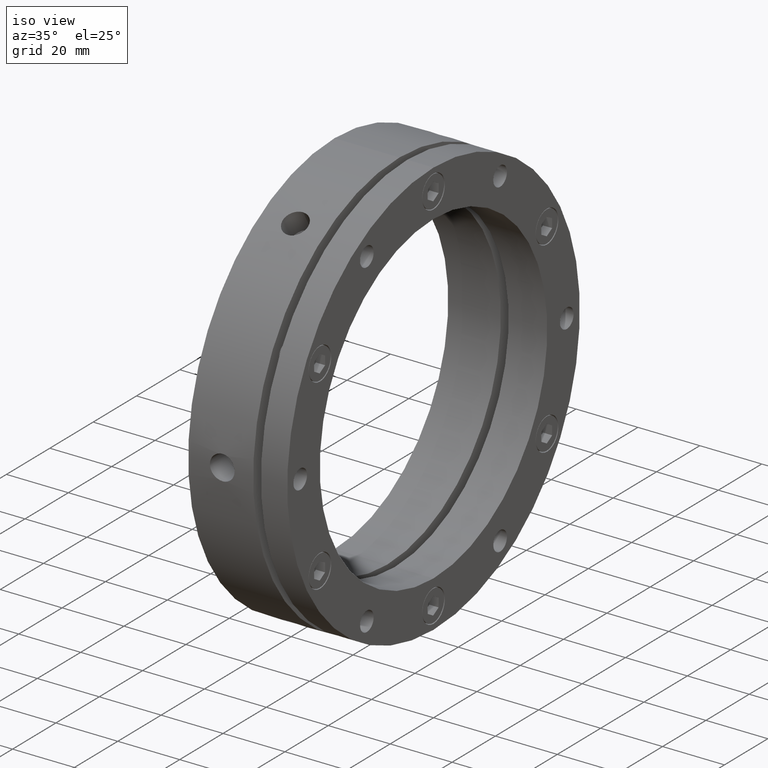
[diagram: clean part render]
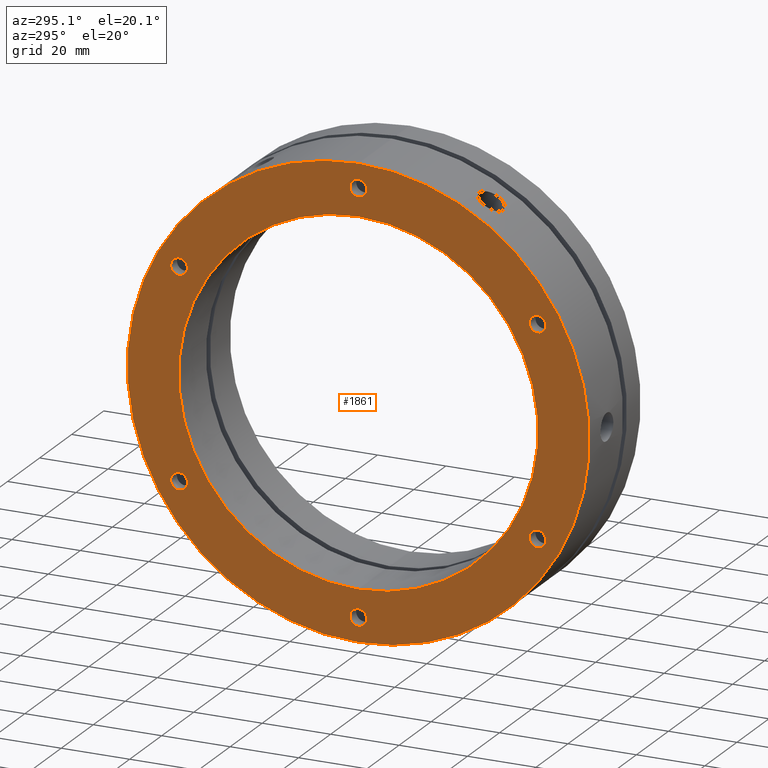
[diagram: tour spotlight — one face highlighted and labeled with its STEP entity id]
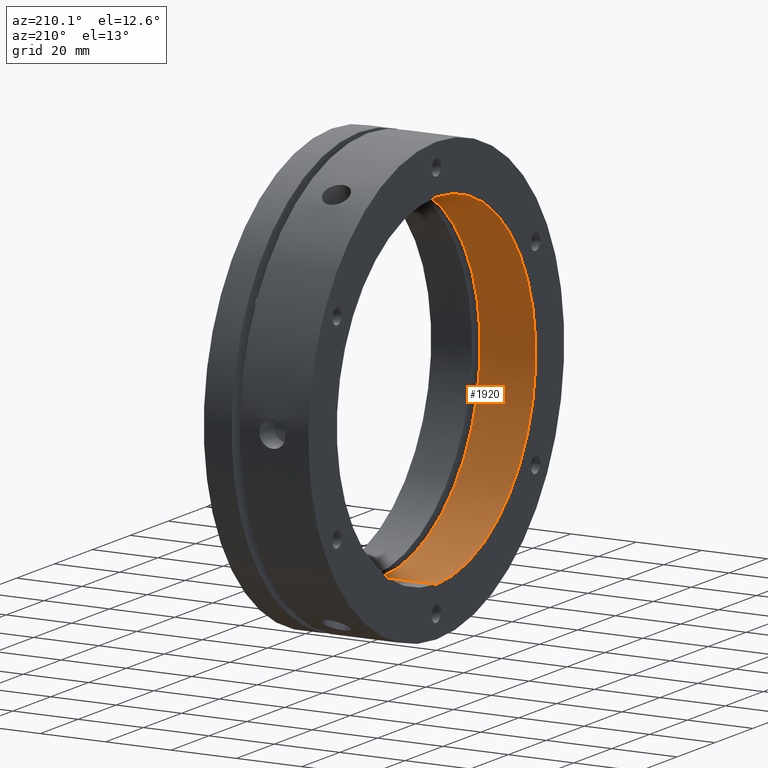
[diagram: tour spotlight — one face highlighted and labeled with its STEP entity id]
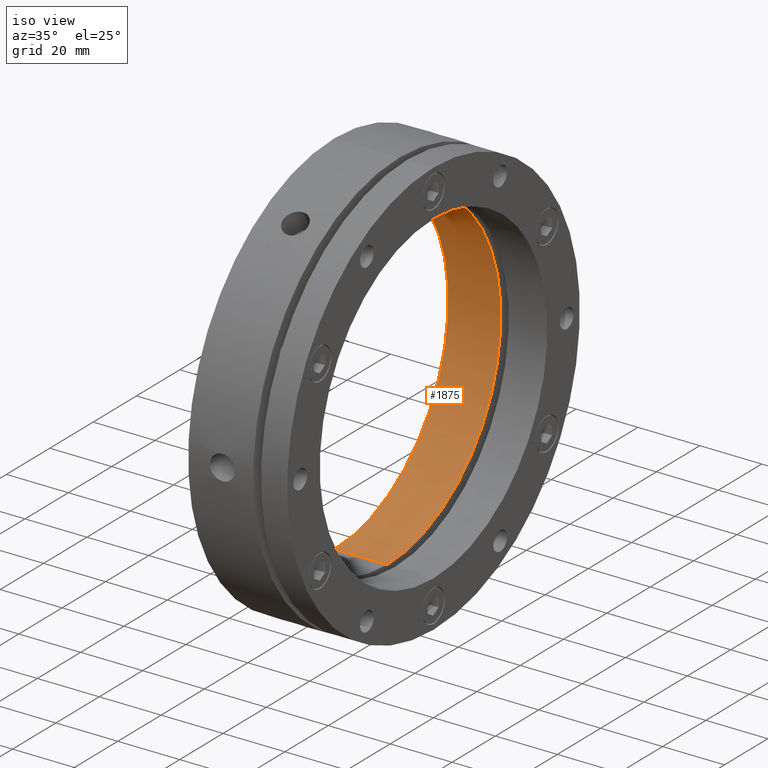
[diagram: tour spotlight — one face highlighted and labeled with its STEP entity id]
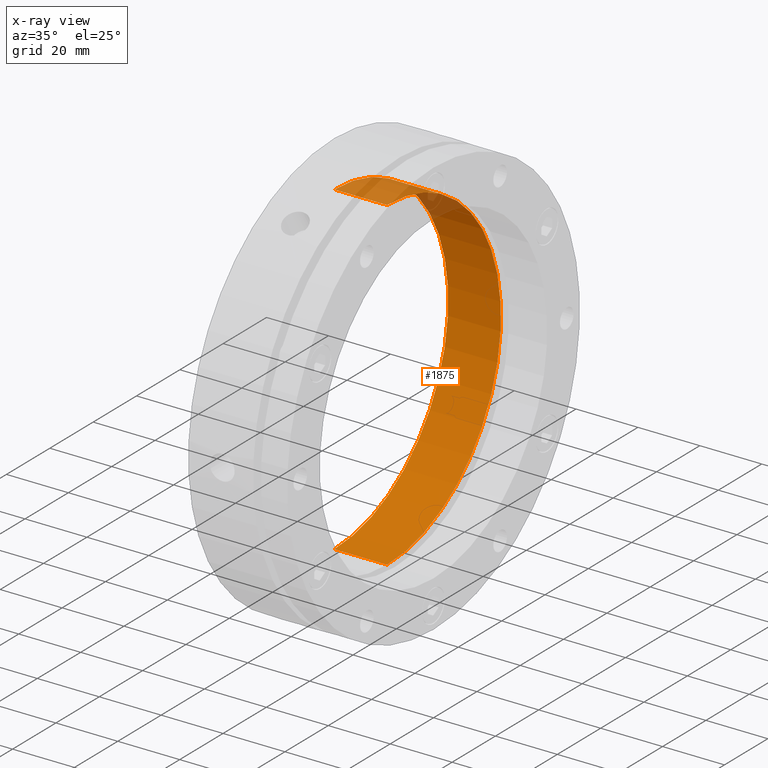
[diagram: x-ray of the same camera — body ghosted, this tour face saturated]
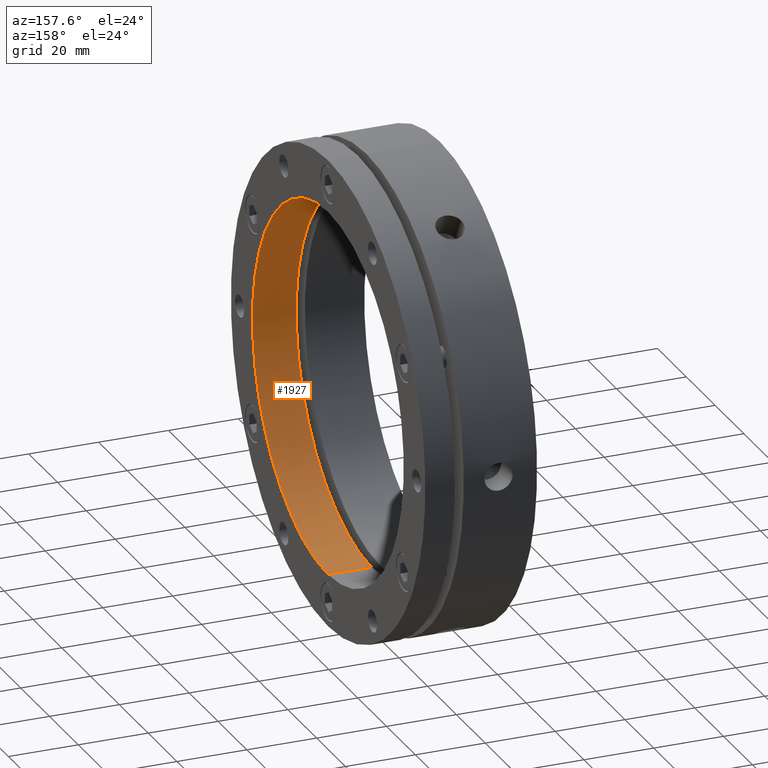
[diagram: tour spotlight — one face highlighted and labeled with its STEP entity id]
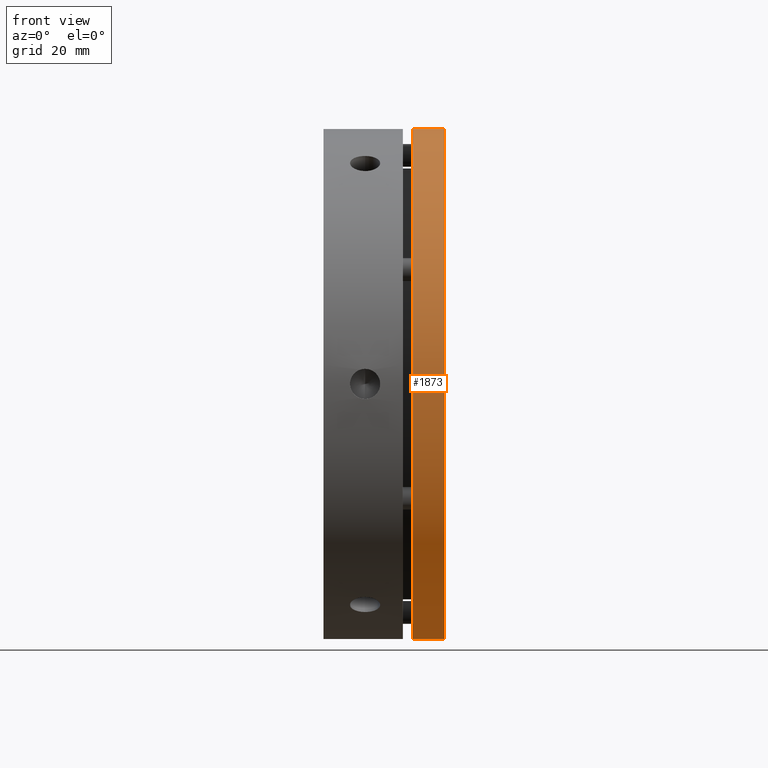
[diagram: tour spotlight — one face highlighted and labeled with its STEP entity id]
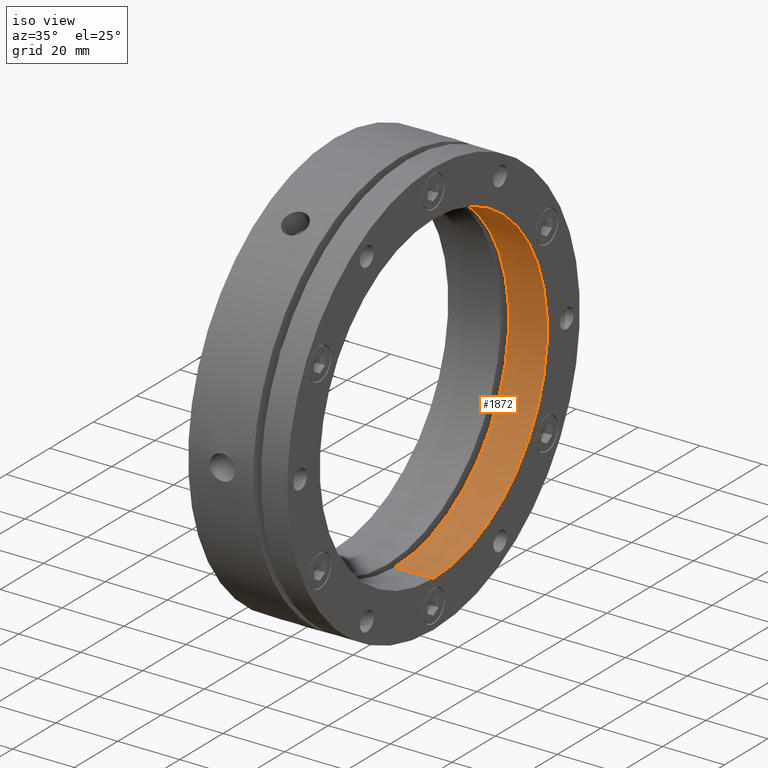
[diagram: tour spotlight — one face highlighted and labeled with its STEP entity id]
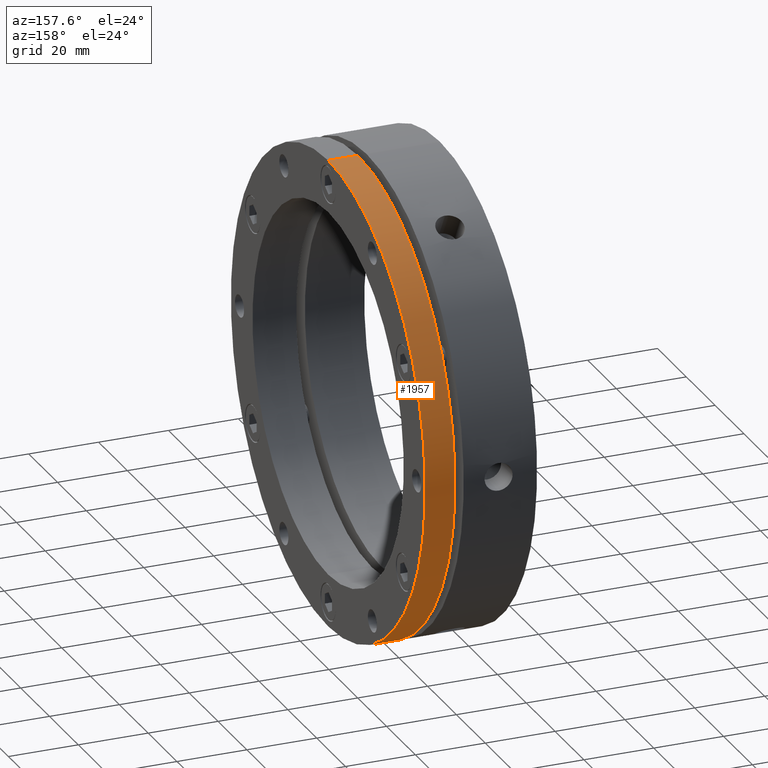
[diagram: tour spotlight — one face highlighted and labeled with its STEP entity id]
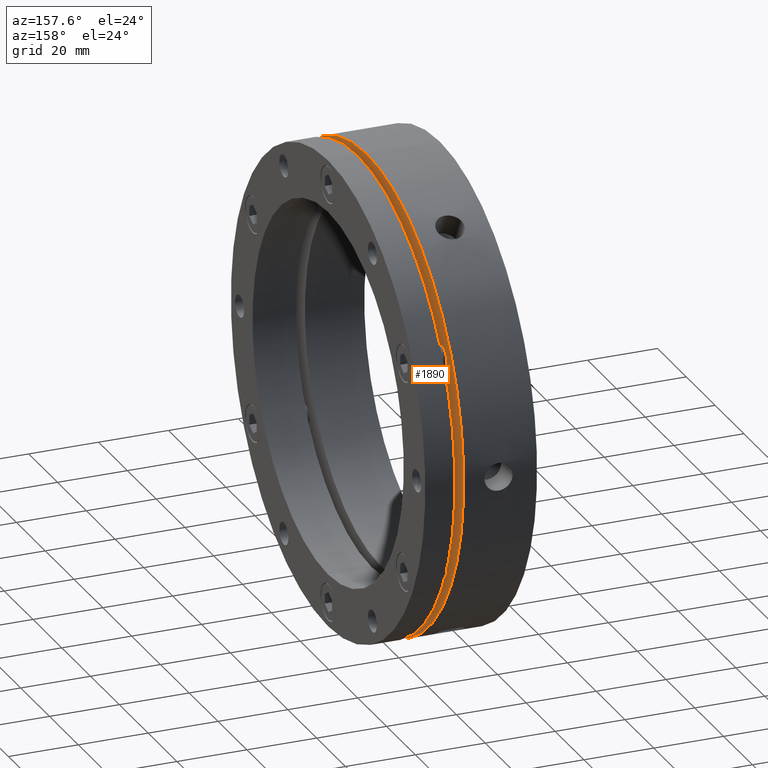
[diagram: tour spotlight — one face highlighted and labeled with its STEP entity id]
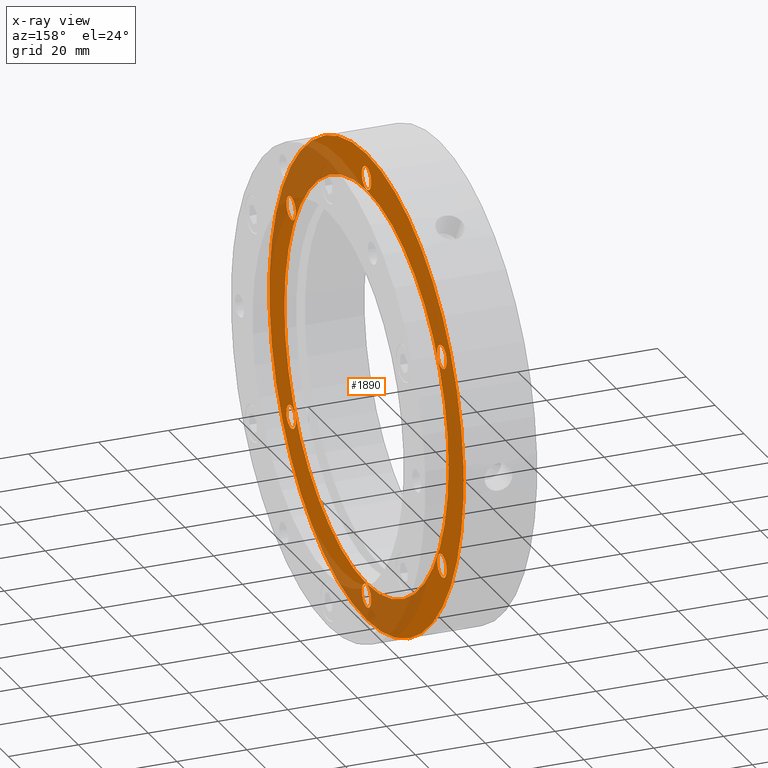
[diagram: x-ray of the same camera — body ghosted, this tour face saturated]
A machine part: a face-by-face anatomy tour. The part has 204 B-rep faces; the first image is the clean iso view, then the 8 largest visible faces are spotlighted one at a time (largest first), each with its STEP entity span.

Face 1 — auxiliary view, entity #1861. In plain terms, the highlighted planar face has unit normal (-1, 0, 0).
Definition (entity closure, byte-faithful):
#417 = CIRCLE ( 'NONE', #524, 2.458499999999999000 ) ;
#433 = CIRCLE ( 'NONE', #528, 2.458499999999995500 ) ;
#438 = CIRCLE ( 'NONE', #529, 67.50000000000000000 ) ;
#439 = CIRCLE ( 'NONE', #532, 2.458499999999999000 ) ;
#455 = CIRCLE ( 'NONE', #535, 52.50000000000000000 ) ;
#512 = AXIS2_PLACEMENT_3D ( 'NONE', #3790, #3791, #3792 ) ;
#514 = AXIS2_PLACEMENT_3D ( 'NONE', #3781, #3782, #3783 ) ;
#515 = AXIS2_PLACEMENT_3D ( 'NONE', #3777, #3778, #3779 ) ;
#524 = AXIS2_PLACEMENT_3D ( 'NONE', #3704, #3705, #3706 ) ;
#528 = AXIS2_PLACEMENT_3D ( 'NONE', #3680, #3681, #3682 ) ;
#529 = AXIS2_PLACEMENT_3D ( 'NONE', #3640, #3641, #3642 ) ;
#532 = AXIS2_PLACEMENT_3D ( 'NONE', #3493, #3494, #3495 ) ;
#535 = AXIS2_PLACEMENT_3D ( 'NONE', #3339, #3340, #3341 ) ;
#620 = EDGE_CURVE ( 'NONE', #2073, #2074, #1198, .T. ) ;
#639 = EDGE_CURVE ( 'NONE', #2081, #2082, #1171, .T. ) ;
#783 = AXIS2_PLACEMENT_3D ( 'NONE', #2841, #2838, #2845 ) ;
#1004 = EDGE_CURVE ( 'NONE', #2085, #2086, #4499, .T. ) ;
#1007 = EDGE_CURVE ( 'NONE', #2118, #2095, #4497, .T. ) ;
#1018 = EDGE_CURVE ( 'NONE', #2114, #2122, #4484, .T. ) ;
#1023 = EDGE_CURVE ( 'NONE', #2077, #2078, #4483, .T. ) ;
#1026 = EDGE_CURVE ( 'NONE', #2089, #2090, #4478, .T. ) ;
#1027 = EDGE_CURVE ( 'NONE', #2069, #2070, #4476, .T. ) ;
#1037 = ORIENTED_EDGE ( 'NONE', *, *, #4539, .T. ) ;
#1044 = ORIENTED_EDGE ( 'NONE', *, *, #4535, .T. ) ;
#1065 = ORIENTED_EDGE ( 'NONE', *, *, #4275, .T. ) ;
#1066 = ORIENTED_EDGE ( 'NONE', *, *, #4287, .T. ) ;
#1067 = ORIENTED_EDGE ( 'NONE', *, *, #1023, .T. ) ;
#1069 = ORIENTED_EDGE ( 'NONE', *, *, #4264, .T. ) ;
#1071 = ORIENTED_EDGE ( 'NONE', *, *, #1026, .T. ) ;
#1073 = ORIENTED_EDGE ( 'NONE', *, *, #1007, .T. ) ;
#1094 = ORIENTED_EDGE ( 'NONE', *, *, #4534, .T. ) ;
#1106 = ORIENTED_EDGE ( 'NONE', *, *, #620, .T. ) ;
#1123 = ORIENTED_EDGE ( 'NONE', *, *, #1018, .F. ) ;
#1126 = ORIENTED_EDGE ( 'NONE', *, *, #1027, .T. ) ;
#1134 = ORIENTED_EDGE ( 'NONE', *, *, #1004, .T. ) ;
#1145 = ORIENTED_EDGE ( 'NONE', *, *, #4297, .T. ) ;
#1171 = CIRCLE ( 'NONE', #2749, 2.458499999999999000 ) ;
#1194 = ORIENTED_EDGE ( 'NONE', *, *, #4283, .F. ) ;
#1198 = CIRCLE ( 'NONE', #4316, 2.458499999999999000 ) ;
#1255 = ORIENTED_EDGE ( 'NONE', *, *, #639, .T. ) ;
#1448 = CARTESIAN_POINT ( 'NONE',  ( -1.734723475976807100E-014, 52.39453692895854400, -30.25000000000004300 ) ) ;
#1449 = DIRECTION ( 'NONE',  ( 1.000000000000000000, -0.0000000000000000000, -0.0000000000000000000 ) ) ;
#1450 = DIRECTION ( 'NONE',  ( 0.0000000000000000000, 0.0000000000000000000, 1.000000000000000000 ) ) ;
#1497 = CARTESIAN_POINT ( 'NONE',  ( -1.734723475976807100E-014, -52.39453692895857300, -30.25000000000000000 ) ) ;
#1498 = DIRECTION ( 'NONE',  ( 1.000000000000000000, -0.0000000000000000000, -0.0000000000000000000 ) ) ;
#1499 = DIRECTION ( 'NONE',  ( 0.0000000000000000000, 0.0000000000000000000, 1.000000000000000000 ) ) ;
#1653 = CARTESIAN_POINT ( 'NONE',  ( -1.734723475976807100E-014, -52.39453692895855900, 30.25000000000002500 ) ) ;
#1654 = DIRECTION ( 'NONE',  ( 1.000000000000000000, -0.0000000000000000000, -0.0000000000000000000 ) ) ;
#1655 = DIRECTION ( 'NONE',  ( 0.0000000000000000000, 0.0000000000000000000, 1.000000000000000000 ) ) ;
#1662 = CARTESIAN_POINT ( 'NONE',  ( -1.387778780781445700E-014, 0.0000000000000000000, 0.0000000000000000000 ) ) ;
#1663 = DIRECTION ( 'NONE',  ( 1.000000000000000000, 0.0000000000000000000, 0.0000000000000000000 ) ) ;
#1664 = DIRECTION ( 'NONE',  ( 0.0000000000000000000, 0.0000000000000000000, -1.000000000000000000 ) ) ;
#1694 = CARTESIAN_POINT ( 'NONE',  ( -1.734723475976807100E-014, 0.0000000000000000000, 0.0000000000000000000 ) ) ;
#1695 = DIRECTION ( 'NONE',  ( 1.000000000000000000, 0.0000000000000000000, 0.0000000000000000000 ) ) ;
#1696 = DIRECTION ( 'NONE',  ( 0.0000000000000000000, 0.0000000000000000000, -1.000000000000000000 ) ) ;
#1742 = CARTESIAN_POINT ( 'NONE',  ( -1.734723475976807100E-014, -8.881783999999999800E-015, -60.50000000000004300 ) ) ;
#1743 = DIRECTION ( 'NONE',  ( 1.000000000000000000, -0.0000000000000000000, -0.0000000000000000000 ) ) ;
#1744 = DIRECTION ( 'NONE',  ( 0.0000000000000000000, 0.0000000000000000000, 1.000000000000000000 ) ) ;
#1751 = CARTESIAN_POINT ( 'NONE',  ( -1.734723475976807100E-014, 0.0000000000000000000, 60.50000000000003600 ) ) ;
#1752 = DIRECTION ( 'NONE',  ( 1.000000000000000000, -0.0000000000000000000, -0.0000000000000000000 ) ) ;
#1753 = DIRECTION ( 'NONE',  ( 0.0000000000000000000, 0.0000000000000000000, 1.000000000000000000 ) ) ;
#1754 = CARTESIAN_POINT ( 'NONE',  ( -1.734723475976807100E-014, 52.39453692895858700, 30.24999999999997900 ) ) ;
#1755 = DIRECTION ( 'NONE',  ( 1.000000000000000000, -0.0000000000000000000, -0.0000000000000000000 ) ) ;
#1756 = DIRECTION ( 'NONE',  ( 0.0000000000000000000, 0.0000000000000000000, 1.000000000000000000 ) ) ;
#1861 = ADVANCED_FACE ( 'NONE', ( #4390, #4382, #4386, #4383, #4388, #4381, #4380, #4379 ), #2843, .T. ) ;
#2069 = VERTEX_POINT ( 'NONE', #3239 ) ;
#2070 = VERTEX_POINT ( 'NONE', #3240 ) ;
#2073 = VERTEX_POINT ( 'NONE', #3243 ) ;
#2074 = VERTEX_POINT ( 'NONE', #3244 ) ;
#2077 = VERTEX_POINT ( 'NONE', #3247 ) ;
#2078 = VERTEX_POINT ( 'NONE', #3248 ) ;
#2081 = VERTEX_POINT ( 'NONE', #3251 ) ;
#2082 = VERTEX_POINT ( 'NONE', #3252 ) ;
#2085 = VERTEX_POINT ( 'NONE', #3255 ) ;
#2086 = VERTEX_POINT ( 'NONE', #3256 ) ;
#2089 = VERTEX_POINT ( 'NONE', #3259 ) ;
#2090 = VERTEX_POINT ( 'NONE', #3260 ) ;
#2095 = VERTEX_POINT ( 'NONE', #3265 ) ;
#2114 = VERTEX_POINT ( 'NONE', #3284 ) ;
#2118 = VERTEX_POINT ( 'NONE', #3288 ) ;
#2122 = VERTEX_POINT ( 'NONE', #3292 ) ;
#2147 = EDGE_LOOP ( 'NONE', ( #1194, #1123 ) ) ;
#2148 = EDGE_LOOP ( 'NONE', ( #1094, #1126 ) ) ;
#2149 = EDGE_LOOP ( 'NONE', ( #1037, #1106 ) ) ;
#2150 = EDGE_LOOP ( 'NONE', ( #1073, #1069 ) ) ;
#2153 = EDGE_LOOP ( 'NONE', ( #1145, #1134 ) ) ;
#2154 = EDGE_LOOP ( 'NONE', ( #1065, #1255 ) ) ;
#2155 = EDGE_LOOP ( 'NONE', ( #1044, #1067 ) ) ;
#2156 = EDGE_LOOP ( 'NONE', ( #1066, #1071 ) ) ;
#2251 = CIRCLE ( 'NONE', #512, 2.458499999999999000 ) ;
#2253 = CIRCLE ( 'NONE', #514, 2.458500000000002600 ) ;
#2283 = CIRCLE ( 'NONE', #515, 2.458500000000002600 ) ;
#2702 = AXIS2_PLACEMENT_3D ( 'NONE', #1754, #1755, #1756 ) ;
#2703 = AXIS2_PLACEMENT_3D ( 'NONE', #1751, #1752, #1753 ) ;
#2706 = AXIS2_PLACEMENT_3D ( 'NONE', #1742, #1743, #1744 ) ;
#2710 = AXIS2_PLACEMENT_3D ( 'NONE', #1694, #1695, #1696 ) ;
#2720 = AXIS2_PLACEMENT_3D ( 'NONE', #1662, #1663, #1664 ) ;
#2723 = AXIS2_PLACEMENT_3D ( 'NONE', #1653, #1654, #1655 ) ;
#2749 = AXIS2_PLACEMENT_3D ( 'NONE', #1497, #1498, #1499 ) ;
#2838 = DIRECTION ( 'NONE',  ( -1.000000000000000000, 0.0000000000000000000, 0.0000000000000000000 ) ) ;
#2841 = CARTESIAN_POINT ( 'NONE',  ( -1.647170000000000100E-014, 60.00000000000000000, 0.0000000000000000000 ) ) ;
#2843 = PLANE ( 'NONE',  #783 ) ;
#2845 = DIRECTION ( 'NONE',  ( 0.0000000000000000000, 0.0000000000000000000, 1.000000000000000000 ) ) ;
#3239 = CARTESIAN_POINT ( 'NONE',  ( -1.734723475976807100E-014, 52.39453692895858700, 27.79149999999997400 ) ) ;
#3240 = CARTESIAN_POINT ( 'NONE',  ( -1.734723475976807100E-014, 52.39453692895858700, 32.70849999999997900 ) ) ;
#3243 = CARTESIAN_POINT ( 'NONE',  ( -1.734723475976807100E-014, 52.39453692895854400, -32.70850000000004300 ) ) ;
#3244 = CARTESIAN_POINT ( 'NONE',  ( -1.734723475976807100E-014, 52.39453692895854400, -27.79150000000004500 ) ) ;
#3247 = CARTESIAN_POINT ( 'NONE',  ( -1.734723475976807100E-014, -8.580704584429623500E-015, -62.95850000000004300 ) ) ;
#3248 = CARTESIAN_POINT ( 'NONE',  ( -1.734723475976807100E-014, -8.881783999999999800E-015, -58.04150000000003500 ) ) ;
#3251 = CARTESIAN_POINT ( 'NONE',  ( -1.734723475976807100E-014, -52.39453692895857300, -32.70850000000000100 ) ) ;
#3252 = CARTESIAN_POINT ( 'NONE',  ( -1.734723475976807100E-014, -52.39453692895857300, -27.79149999999999900 ) ) ;
#3255 = CARTESIAN_POINT ( 'NONE',  ( -1.734723475976807100E-014, -52.39453692895855900, 27.79150000000002400 ) ) ;
#3256 = CARTESIAN_POINT ( 'NONE',  ( -1.734723475976807100E-014, -52.39453692895855900, 32.70850000000002200 ) ) ;
#3259 = CARTESIAN_POINT ( 'NONE',  ( -1.734723475976807100E-014, 3.010794155703764200E-016, 58.04150000000002800 ) ) ;
#3260 = CARTESIAN_POINT ( 'NONE',  ( -1.734723475976807100E-014, 0.0000000000000000000, 62.95850000000002900 ) ) ;
#3265 = CARTESIAN_POINT ( 'NONE',  ( -1.387778780781445700E-014, 6.429395695523604000E-015, 52.50000000000000000 ) ) ;
#3284 = CARTESIAN_POINT ( 'NONE',  ( -1.734723475976807100E-014, 8.266365894244635100E-015, 67.50000000000000000 ) ) ;
#3288 = CARTESIAN_POINT ( 'NONE',  ( -1.387778780781445700E-014, 0.0000000000000000000, -52.50000000000000000 ) ) ;
#3292 = CARTESIAN_POINT ( 'NONE',  ( -1.734723475976807100E-014, 0.0000000000000000000, -67.50000000000000000 ) ) ;
#3339 = CARTESIAN_POINT ( 'NONE',  ( -1.387778780781445700E-014, 0.0000000000000000000, 0.0000000000000000000 ) ) ;
#3340 = DIRECTION ( 'NONE',  ( 1.000000000000000000, 0.0000000000000000000, 0.0000000000000000000 ) ) ;
#3341 = DIRECTION ( 'NONE',  ( 0.0000000000000000000, 0.0000000000000000000, -1.000000000000000000 ) ) ;
#3493 = CARTESIAN_POINT ( 'NONE',  ( -1.734723475976807100E-014, -52.39453692895857300, -30.25000000000000000 ) ) ;
#3494 = DIRECTION ( 'NONE',  ( 1.000000000000000000, -0.0000000000000000000, -0.0000000000000000000 ) ) ;
#3495 = DIRECTION ( 'NONE',  ( 0.0000000000000000000, 0.0000000000000000000, 1.000000000000000000 ) ) ;
#3640 = CARTESIAN_POINT ( 'NONE',  ( -1.734723475976807100E-014, 0.0000000000000000000, 0.0000000000000000000 ) ) ;
#3641 = DIRECTION ( 'NONE',  ( 1.000000000000000000, 0.0000000000000000000, 0.0000000000000000000 ) ) ;
#3642 = DIRECTION ( 'NONE',  ( 0.0000000000000000000, 0.0000000000000000000, -1.000000000000000000 ) ) ;
#3680 = CARTESIAN_POINT ( 'NONE',  ( -1.734723475976807100E-014, 0.0000000000000000000, 60.50000000000003600 ) ) ;
#3681 = DIRECTION ( 'NONE',  ( 1.000000000000000000, -0.0000000000000000000, -0.0000000000000000000 ) ) ;
#3682 = DIRECTION ( 'NONE',  ( 0.0000000000000000000, 0.0000000000000000000, 1.000000000000000000 ) ) ;
#3704 = CARTESIAN_POINT ( 'NONE',  ( -1.734723475976807100E-014, -52.39453692895855900, 30.25000000000002500 ) ) ;
#3705 = DIRECTION ( 'NONE',  ( 1.000000000000000000, -0.0000000000000000000, -0.0000000000000000000 ) ) ;
#3706 = DIRECTION ( 'NONE',  ( 0.0000000000000000000, 0.0000000000000000000, 1.000000000000000000 ) ) ;
#3777 = CARTESIAN_POINT ( 'NONE',  ( -1.734723475976807100E-014, 52.39453692895858700, 30.24999999999997900 ) ) ;
#3778 = DIRECTION ( 'NONE',  ( 1.000000000000000000, -0.0000000000000000000, -0.0000000000000000000 ) ) ;
#3779 = DIRECTION ( 'NONE',  ( 0.0000000000000000000, 0.0000000000000000000, 1.000000000000000000 ) ) ;
#3781 = CARTESIAN_POINT ( 'NONE',  ( -1.734723475976807100E-014, -8.881783999999999800E-015, -60.50000000000004300 ) ) ;
#3782 = DIRECTION ( 'NONE',  ( 1.000000000000000000, -0.0000000000000000000, -0.0000000000000000000 ) ) ;
#3783 = DIRECTION ( 'NONE',  ( 0.0000000000000000000, 0.0000000000000000000, 1.000000000000000000 ) ) ;
#3790 = CARTESIAN_POINT ( 'NONE',  ( -1.734723475976807100E-014, 52.39453692895854400, -30.25000000000004300 ) ) ;
#3791 = DIRECTION ( 'NONE',  ( 1.000000000000000000, -0.0000000000000000000, -0.0000000000000000000 ) ) ;
#3792 = DIRECTION ( 'NONE',  ( 0.0000000000000000000, 0.0000000000000000000, 1.000000000000000000 ) ) ;
#4264 = EDGE_CURVE ( 'NONE', #2095, #2118, #455, .T. ) ;
#4275 = EDGE_CURVE ( 'NONE', #2082, #2081, #439, .T. ) ;
#4283 = EDGE_CURVE ( 'NONE', #2122, #2114, #438, .T. ) ;
#4287 = EDGE_CURVE ( 'NONE', #2090, #2089, #433, .T. ) ;
#4297 = EDGE_CURVE ( 'NONE', #2086, #2085, #417, .T. ) ;
#4316 = AXIS2_PLACEMENT_3D ( 'NONE', #1448, #1449, #1450 ) ;
#4379 = FACE_OUTER_BOUND ( 'NONE', #2147, .T. ) ;
#4380 = FACE_BOUND ( 'NONE', #2148, .T. ) ;
#4381 = FACE_BOUND ( 'NONE', #2149, .T. ) ;
#4382 = FACE_BOUND ( 'NONE', #2156, .T. ) ;
#4383 = FACE_BOUND ( 'NONE', #2154, .T. ) ;
#4386 = FACE_BOUND ( 'NONE', #2153, .T. ) ;
#4388 = FACE_BOUND ( 'NONE', #2155, .T. ) ;
#4390 = FACE_BOUND ( 'NONE', #2150, .T. ) ;
#4476 = CIRCLE ( 'NONE', #2702, 2.458500000000002600 ) ;
#4478 = CIRCLE ( 'NONE', #2703, 2.458499999999995500 ) ;
#4483 = CIRCLE ( 'NONE', #2706, 2.458500000000002600 ) ;
#4484 = CIRCLE ( 'NONE', #2710, 67.50000000000000000 ) ;
#4497 = CIRCLE ( 'NONE', #2720, 52.50000000000000000 ) ;
#4499 = CIRCLE ( 'NONE', #2723, 2.458499999999999000 ) ;
#4534 = EDGE_CURVE ( 'NONE', #2070, #2069, #2283, .T. ) ;
#4535 = EDGE_CURVE ( 'NONE', #2078, #2077, #2253, .T. ) ;
#4539 = EDGE_CURVE ( 'NONE', #2074, #2073, #2251, .T. ) ;

Face 2 — auxiliary view, entity #1920. In plain terms, the highlighted cylindrical surface (partial cylindrical patch) has radius 52.5 mm, axis along (1, 0, 0).
Definition (entity closure, byte-faithful):
#47 = EDGE_LOOP ( 'NONE', ( #864, #863, #862, #861 ) ) ;
#401 = VECTOR ( 'NONE', #3715, 1000.000000000000000 ) ;
#403 = LINE ( 'NONE', #3717, #401 ) ;
#404 = VECTOR ( 'NONE', #3716, 1000.000000000000000 ) ;
#407 = CIRCLE ( 'NONE', #522, 52.50000000000000000 ) ;
#409 = LINE ( 'NONE', #3708, #404 ) ;
#455 = CIRCLE ( 'NONE', #535, 52.50000000000000000 ) ;
#522 = AXIS2_PLACEMENT_3D ( 'NONE', #3719, #3720, #3721 ) ;
#535 = AXIS2_PLACEMENT_3D ( 'NONE', #3339, #3340, #3341 ) ;
#604 = AXIS2_PLACEMENT_3D ( 'NONE', #3012, #3010, #3008 ) ;
#861 = ORIENTED_EDGE ( 'NONE', *, *, #4304, .F. ) ;
#862 = ORIENTED_EDGE ( 'NONE', *, *, #4303, .F. ) ;
#863 = ORIENTED_EDGE ( 'NONE', *, *, #4302, .T. ) ;
#864 = ORIENTED_EDGE ( 'NONE', *, *, #4264, .F. ) ;
#986 = CYLINDRICAL_SURFACE ( 'NONE', #604, 52.50000000000000000 ) ;
#995 = FACE_OUTER_BOUND ( 'NONE', #47, .T. ) ;
#1920 = ADVANCED_FACE ( 'NONE', ( #995 ), #986, .F. ) ;
#2093 = VERTEX_POINT ( 'NONE', #3263 ) ;
#2094 = VERTEX_POINT ( 'NONE', #3264 ) ;
#2095 = VERTEX_POINT ( 'NONE', #3265 ) ;
#2118 = VERTEX_POINT ( 'NONE', #3288 ) ;
#3008 = DIRECTION ( 'NONE',  ( 0.0000000000000000000, 0.0000000000000000000, -1.000000000000000000 ) ) ;
#3010 = DIRECTION ( 'NONE',  ( 1.000000000000000000, 0.0000000000000000000, 0.0000000000000000000 ) ) ;
#3012 = CARTESIAN_POINT ( 'NONE',  ( 15.99999999999998600, 0.0000000000000000000, 0.0000000000000000000 ) ) ;
#3263 = CARTESIAN_POINT ( 'NONE',  ( 17.00000000000000700, 6.429395695523604000E-015, 52.50000000000000000 ) ) ;
#3264 = CARTESIAN_POINT ( 'NONE',  ( 17.00000000000000700, 0.0000000000000000000, -52.50000000000000000 ) ) ;
#3265 = CARTESIAN_POINT ( 'NONE',  ( -1.387778780781445700E-014, 6.429395695523604000E-015, 52.50000000000000000 ) ) ;
#3288 = CARTESIAN_POINT ( 'NONE',  ( -1.387778780781445700E-014, 0.0000000000000000000, -52.50000000000000000 ) ) ;
#3339 = CARTESIAN_POINT ( 'NONE',  ( -1.387778780781445700E-014, 0.0000000000000000000, 0.0000000000000000000 ) ) ;
#3340 = DIRECTION ( 'NONE',  ( 1.000000000000000000, 0.0000000000000000000, 0.0000000000000000000 ) ) ;
#3341 = DIRECTION ( 'NONE',  ( 0.0000000000000000000, 0.0000000000000000000, -1.000000000000000000 ) ) ;
#3708 = CARTESIAN_POINT ( 'NONE',  ( 15.99999999999998600, 6.429395695523604000E-015, 52.50000000000000000 ) ) ;
#3715 = DIRECTION ( 'NONE',  ( 1.000000000000000000, 0.0000000000000000000, 0.0000000000000000000 ) ) ;
#3716 = DIRECTION ( 'NONE',  ( 1.000000000000000000, 0.0000000000000000000, 0.0000000000000000000 ) ) ;
#3717 = CARTESIAN_POINT ( 'NONE',  ( 15.99999999999998600, 0.0000000000000000000, -52.50000000000000000 ) ) ;
#3719 = CARTESIAN_POINT ( 'NONE',  ( 17.00000000000000700, 0.0000000000000000000, 0.0000000000000000000 ) ) ;
#3720 = DIRECTION ( 'NONE',  ( -1.000000000000000000, -0.0000000000000000000, -0.0000000000000000000 ) ) ;
#3721 = DIRECTION ( 'NONE',  ( 0.0000000000000000000, 0.0000000000000000000, -1.000000000000000000 ) ) ;
#4264 = EDGE_CURVE ( 'NONE', #2095, #2118, #455, .T. ) ;
#4302 = EDGE_CURVE ( 'NONE', #2095, #2093, #409, .T. ) ;
#4303 = EDGE_CURVE ( 'NONE', #2094, #2093, #407, .T. ) ;
#4304 = EDGE_CURVE ( 'NONE', #2118, #2094, #403, .T. ) ;

Face 3 — iso view, entity #1875. An x-ray twin of the same camera follows (body ghosted, this face saturated) — the face is partly hidden behind the body. In plain terms, the highlighted cylindrical surface (partial cylindrical patch) has radius 52.5 mm, axis along (1, 0, 0).
Definition (entity closure, byte-faithful):
#401 = VECTOR ( 'NONE', #3715, 1000.000000000000000 ) ;
#403 = LINE ( 'NONE', #3717, #401 ) ;
#404 = VECTOR ( 'NONE', #3716, 1000.000000000000000 ) ;
#409 = LINE ( 'NONE', #3708, #404 ) ;
#622 = EDGE_CURVE ( 'NONE', #2093, #2094, #1196, .T. ) ;
#769 = AXIS2_PLACEMENT_3D ( 'NONE', #2891, #2889, #2887 ) ;
#1007 = EDGE_CURVE ( 'NONE', #2118, #2095, #4497, .T. ) ;
#1042 = ORIENTED_EDGE ( 'NONE', *, *, #1007, .F. ) ;
#1115 = ORIENTED_EDGE ( 'NONE', *, *, #622, .F. ) ;
#1141 = ORIENTED_EDGE ( 'NONE', *, *, #4302, .F. ) ;
#1196 = CIRCLE ( 'NONE', #4314, 52.50000000000000000 ) ;
#1280 = ORIENTED_EDGE ( 'NONE', *, *, #4304, .T. ) ;
#1455 = CARTESIAN_POINT ( 'NONE',  ( 17.00000000000000700, 0.0000000000000000000, 0.0000000000000000000 ) ) ;
#1456 = DIRECTION ( 'NONE',  ( -1.000000000000000000, -0.0000000000000000000, -0.0000000000000000000 ) ) ;
#1457 = DIRECTION ( 'NONE',  ( 0.0000000000000000000, 0.0000000000000000000, -1.000000000000000000 ) ) ;
#1662 = CARTESIAN_POINT ( 'NONE',  ( -1.387778780781445700E-014, 0.0000000000000000000, 0.0000000000000000000 ) ) ;
#1663 = DIRECTION ( 'NONE',  ( 1.000000000000000000, 0.0000000000000000000, 0.0000000000000000000 ) ) ;
#1664 = DIRECTION ( 'NONE',  ( 0.0000000000000000000, 0.0000000000000000000, -1.000000000000000000 ) ) ;
#1875 = ADVANCED_FACE ( 'NONE', ( #4261 ), #4175, .F. ) ;
#2093 = VERTEX_POINT ( 'NONE', #3263 ) ;
#2094 = VERTEX_POINT ( 'NONE', #3264 ) ;
#2095 = VERTEX_POINT ( 'NONE', #3265 ) ;
#2118 = VERTEX_POINT ( 'NONE', #3288 ) ;
#2165 = EDGE_LOOP ( 'NONE', ( #1141, #1042, #1280, #1115 ) ) ;
#2720 = AXIS2_PLACEMENT_3D ( 'NONE', #1662, #1663, #1664 ) ;
#2887 = DIRECTION ( 'NONE',  ( 0.0000000000000000000, 0.0000000000000000000, -1.000000000000000000 ) ) ;
#2889 = DIRECTION ( 'NONE',  ( 1.000000000000000000, 0.0000000000000000000, 0.0000000000000000000 ) ) ;
#2891 = CARTESIAN_POINT ( 'NONE',  ( 15.99999999999998600, 0.0000000000000000000, 0.0000000000000000000 ) ) ;
#3263 = CARTESIAN_POINT ( 'NONE',  ( 17.00000000000000700, 6.429395695523604000E-015, 52.50000000000000000 ) ) ;
#3264 = CARTESIAN_POINT ( 'NONE',  ( 17.00000000000000700, 0.0000000000000000000, -52.50000000000000000 ) ) ;
#3265 = CARTESIAN_POINT ( 'NONE',  ( -1.387778780781445700E-014, 6.429395695523604000E-015, 52.50000000000000000 ) ) ;
#3288 = CARTESIAN_POINT ( 'NONE',  ( -1.387778780781445700E-014, 0.0000000000000000000, -52.50000000000000000 ) ) ;
#3708 = CARTESIAN_POINT ( 'NONE',  ( 15.99999999999998600, 6.429395695523604000E-015, 52.50000000000000000 ) ) ;
#3715 = DIRECTION ( 'NONE',  ( 1.000000000000000000, 0.0000000000000000000, 0.0000000000000000000 ) ) ;
#3716 = DIRECTION ( 'NONE',  ( 1.000000000000000000, 0.0000000000000000000, 0.0000000000000000000 ) ) ;
#3717 = CARTESIAN_POINT ( 'NONE',  ( 15.99999999999998600, 0.0000000000000000000, -52.50000000000000000 ) ) ;
#4175 = CYLINDRICAL_SURFACE ( 'NONE', #769, 52.50000000000000000 ) ;
#4261 = FACE_OUTER_BOUND ( 'NONE', #2165, .T. ) ;
#4302 = EDGE_CURVE ( 'NONE', #2095, #2093, #409, .T. ) ;
#4304 = EDGE_CURVE ( 'NONE', #2118, #2094, #403, .T. ) ;
#4314 = AXIS2_PLACEMENT_3D ( 'NONE', #1455, #1456, #1457 ) ;
#4497 = CIRCLE ( 'NONE', #2720, 52.50000000000000000 ) ;

Face 4 — auxiliary view, entity #1927. In plain terms, the highlighted cylindrical surface (partial cylindrical patch) has radius 52.5 mm, axis along (1, 0, 0).
Definition (entity closure, byte-faithful):
#52 = EDGE_LOOP ( 'NONE', ( #209, #160, #270, #111 ) ) ;
#111 = ORIENTED_EDGE ( 'NONE', *, *, #4562, .F. ) ;
#160 = ORIENTED_EDGE ( 'NONE', *, *, #4561, .T. ) ;
#209 = ORIENTED_EDGE ( 'NONE', *, *, #4564, .T. ) ;
#270 = ORIENTED_EDGE ( 'NONE', *, *, #4560, .F. ) ;
#352 = VECTOR ( 'NONE', #3845, 1000.000000000000000 ) ;
#354 = VECTOR ( 'NONE', #3837, 1000.000000000000000 ) ;
#355 = CIRCLE ( 'NONE', #501, 52.50000000000000000 ) ;
#356 = LINE ( 'NONE', #3836, #354 ) ;
#357 = CIRCLE ( 'NONE', #503, 52.50000000000000000 ) ;
#360 = LINE ( 'NONE', #3841, #352 ) ;
#501 = AXIS2_PLACEMENT_3D ( 'NONE', #3852, #3853, #3854 ) ;
#503 = AXIS2_PLACEMENT_3D ( 'NONE', #3842, #3843, #3844 ) ;
#594 = AXIS2_PLACEMENT_3D ( 'NONE', #3030, #3028, #3026 ) ;
#976 = CYLINDRICAL_SURFACE ( 'NONE', #594, 52.50000000000000000 ) ;
#981 = FACE_OUTER_BOUND ( 'NONE', #52, .T. ) ;
#1927 = ADVANCED_FACE ( 'NONE', ( #981 ), #976, .F. ) ;
#1999 = VERTEX_POINT ( 'NONE', #3169 ) ;
#2000 = VERTEX_POINT ( 'NONE', #3170 ) ;
#2004 = VERTEX_POINT ( 'NONE', #3174 ) ;
#2005 = VERTEX_POINT ( 'NONE', #3175 ) ;
#3026 = DIRECTION ( 'NONE',  ( 0.0000000000000000000, 0.0000000000000000000, -1.000000000000000000 ) ) ;
#3028 = DIRECTION ( 'NONE',  ( 1.000000000000000000, 0.0000000000000000000, 0.0000000000000000000 ) ) ;
#3030 = CARTESIAN_POINT ( 'NONE',  ( 15.99999999999998600, 0.0000000000000000000, 0.0000000000000000000 ) ) ;
#3169 = CARTESIAN_POINT ( 'NONE',  ( 31.99999999999998600, 6.429395695523604000E-015, 52.50000000000000000 ) ) ;
#3170 = CARTESIAN_POINT ( 'NONE',  ( 31.99999999999998600, 0.0000000000000000000, -52.50000000000000000 ) ) ;
#3174 = CARTESIAN_POINT ( 'NONE',  ( 19.49999999999999600, 6.429395695523604000E-015, 52.50000000000000000 ) ) ;
#3175 = CARTESIAN_POINT ( 'NONE',  ( 19.49999999999999600, 0.0000000000000000000, -52.50000000000000000 ) ) ;
#3836 = CARTESIAN_POINT ( 'NONE',  ( 15.99999999999998600, 6.429395695523604000E-015, 52.50000000000000000 ) ) ;
#3837 = DIRECTION ( 'NONE',  ( 1.000000000000000000, 0.0000000000000000000, 0.0000000000000000000 ) ) ;
#3841 = CARTESIAN_POINT ( 'NONE',  ( 15.99999999999998600, 0.0000000000000000000, -52.50000000000000000 ) ) ;
#3842 = CARTESIAN_POINT ( 'NONE',  ( 31.99999999999998600, 0.0000000000000000000, 0.0000000000000000000 ) ) ;
#3843 = DIRECTION ( 'NONE',  ( -1.000000000000000000, -0.0000000000000000000, -0.0000000000000000000 ) ) ;
#3844 = DIRECTION ( 'NONE',  ( 0.0000000000000000000, 0.0000000000000000000, -1.000000000000000000 ) ) ;
#3845 = DIRECTION ( 'NONE',  ( 1.000000000000000000, 0.0000000000000000000, 0.0000000000000000000 ) ) ;
#3852 = CARTESIAN_POINT ( 'NONE',  ( 19.49999999999999600, 0.0000000000000000000, 0.0000000000000000000 ) ) ;
#3853 = DIRECTION ( 'NONE',  ( -1.000000000000000000, -0.0000000000000000000, -0.0000000000000000000 ) ) ;
#3854 = DIRECTION ( 'NONE',  ( 0.0000000000000000000, 0.0000000000000000000, -1.000000000000000000 ) ) ;
#4560 = EDGE_CURVE ( 'NONE', #2000, #1999, #357, .T. ) ;
#4561 = EDGE_CURVE ( 'NONE', #2004, #1999, #356, .T. ) ;
#4562 = EDGE_CURVE ( 'NONE', #2005, #2000, #360, .T. ) ;
#4564 = EDGE_CURVE ( 'NONE', #2005, #2004, #355, .T. ) ;

Face 5 — front view, entity #1873. In plain terms, the highlighted cylindrical surface (partial cylindrical patch) has radius 67.5 mm, axis along (1, 0, 0).
Definition (entity closure, byte-faithful):
#590 = EDGE_CURVE ( 'NONE', #2002, #2003, #1224, .T. ) ;
#637 = EDGE_CURVE ( 'NONE', #2006, #2009, #1170, .T. ) ;
#771 = AXIS2_PLACEMENT_3D ( 'NONE', #2885, #2883, #2877 ) ;
#1170 = CIRCLE ( 'NONE', #2696, 67.50000000000000000 ) ;
#1224 = CIRCLE ( 'NONE', #4332, 67.50000000000000000 ) ;
#1389 = CARTESIAN_POINT ( 'NONE',  ( 31.99999999999998600, 0.0000000000000000000, 0.0000000000000000000 ) ) ;
#1390 = DIRECTION ( 'NONE',  ( -1.000000000000000000, -0.0000000000000000000, -0.0000000000000000000 ) ) ;
#1391 = DIRECTION ( 'NONE',  ( 0.0000000000000000000, 0.0000000000000000000, -1.000000000000000000 ) ) ;
#1491 = CARTESIAN_POINT ( 'NONE',  ( 23.49999999999998600, 0.0000000000000000000, 0.0000000000000000000 ) ) ;
#1492 = DIRECTION ( 'NONE',  ( 1.000000000000000000, 0.0000000000000000000, 0.0000000000000000000 ) ) ;
#1493 = DIRECTION ( 'NONE',  ( 0.0000000000000000000, 0.0000000000000000000, -1.000000000000000000 ) ) ;
#1873 = ADVANCED_FACE ( 'NONE', ( #4165 ), #4179, .T. ) ;
#2002 = VERTEX_POINT ( 'NONE', #3172 ) ;
#2003 = VERTEX_POINT ( 'NONE', #3173 ) ;
#2006 = VERTEX_POINT ( 'NONE', #3176 ) ;
#2009 = VERTEX_POINT ( 'NONE', #3179 ) ;
#2219 = EDGE_LOOP ( 'NONE', ( #2446, #2445, #2438, #2436 ) ) ;
#2436 = ORIENTED_EDGE ( 'NONE', *, *, #590, .T. ) ;
#2438 = ORIENTED_EDGE ( 'NONE', *, *, #4605, .T. ) ;
#2445 = ORIENTED_EDGE ( 'NONE', *, *, #637, .T. ) ;
#2446 = ORIENTED_EDGE ( 'NONE', *, *, #4604, .F. ) ;
#2696 = AXIS2_PLACEMENT_3D ( 'NONE', #1491, #1492, #1493 ) ;
#2877 = DIRECTION ( 'NONE',  ( 0.0000000000000000000, 0.0000000000000000000, -1.000000000000000000 ) ) ;
#2883 = DIRECTION ( 'NONE',  ( 1.000000000000000000, 0.0000000000000000000, 0.0000000000000000000 ) ) ;
#2885 = CARTESIAN_POINT ( 'NONE',  ( 15.99999999999998200, 0.0000000000000000000, 0.0000000000000000000 ) ) ;
#3172 = CARTESIAN_POINT ( 'NONE',  ( 31.99999999999998600, 0.0000000000000000000, -67.50000000000000000 ) ) ;
#3173 = CARTESIAN_POINT ( 'NONE',  ( 31.99999999999998600, 8.266365894244635100E-015, 67.50000000000000000 ) ) ;
#3176 = CARTESIAN_POINT ( 'NONE',  ( 23.49999999999998600, 8.266365894244635100E-015, 67.50000000000000000 ) ) ;
#3179 = CARTESIAN_POINT ( 'NONE',  ( 23.49999999999998600, 0.0000000000000000000, -67.50000000000000000 ) ) ;
#3950 = CARTESIAN_POINT ( 'NONE',  ( 15.99999999999998200, 8.266365894244635100E-015, 67.50000000000000000 ) ) ;
#3951 = DIRECTION ( 'NONE',  ( 1.000000000000000000, 0.0000000000000000000, 0.0000000000000000000 ) ) ;
#3952 = CARTESIAN_POINT ( 'NONE',  ( 15.99999999999998200, 0.0000000000000000000, -67.50000000000000000 ) ) ;
#3953 = DIRECTION ( 'NONE',  ( 1.000000000000000000, 0.0000000000000000000, 0.0000000000000000000 ) ) ;
#4165 = FACE_OUTER_BOUND ( 'NONE', #2219, .T. ) ;
#4179 = CYLINDRICAL_SURFACE ( 'NONE', #771, 67.50000000000000000 ) ;
#4332 = AXIS2_PLACEMENT_3D ( 'NONE', #1389, #1390, #1391 ) ;
#4604 = EDGE_CURVE ( 'NONE', #2006, #2003, #4726, .T. ) ;
#4605 = EDGE_CURVE ( 'NONE', #2009, #2002, #4724, .T. ) ;
#4721 = VECTOR ( 'NONE', #3953, 1000.000000000000000 ) ;
#4723 = VECTOR ( 'NONE', #3951, 1000.000000000000000 ) ;
#4724 = LINE ( 'NONE', #3952, #4721 ) ;
#4726 = LINE ( 'NONE', #3950, #4723 ) ;

Face 6 — iso view, entity #1872. In plain terms, the highlighted cylindrical surface (partial cylindrical patch) has radius 52.5 mm, axis along (1, 0, 0).
Definition (entity closure, byte-faithful):
#19 = EDGE_LOOP ( 'NONE', ( #2455, #2454, #2452, #2451 ) ) ;
#352 = VECTOR ( 'NONE', #3845, 1000.000000000000000 ) ;
#354 = VECTOR ( 'NONE', #3837, 1000.000000000000000 ) ;
#356 = LINE ( 'NONE', #3836, #354 ) ;
#360 = LINE ( 'NONE', #3841, #352 ) ;
#563 = EDGE_CURVE ( 'NONE', #2004, #2005, #1240, .T. ) ;
#592 = EDGE_CURVE ( 'NONE', #1999, #2000, #1223, .T. ) ;
#772 = AXIS2_PLACEMENT_3D ( 'NONE', #2882, #2881, #2878 ) ;
#1223 = CIRCLE ( 'NONE', #4331, 52.50000000000000000 ) ;
#1240 = CIRCLE ( 'NONE', #4343, 52.50000000000000000 ) ;
#1319 = CARTESIAN_POINT ( 'NONE',  ( 19.49999999999999600, 0.0000000000000000000, 0.0000000000000000000 ) ) ;
#1320 = DIRECTION ( 'NONE',  ( -1.000000000000000000, -0.0000000000000000000, -0.0000000000000000000 ) ) ;
#1321 = DIRECTION ( 'NONE',  ( 0.0000000000000000000, 0.0000000000000000000, -1.000000000000000000 ) ) ;
#1392 = CARTESIAN_POINT ( 'NONE',  ( 31.99999999999998600, 0.0000000000000000000, 0.0000000000000000000 ) ) ;
#1393 = DIRECTION ( 'NONE',  ( -1.000000000000000000, -0.0000000000000000000, -0.0000000000000000000 ) ) ;
#1394 = DIRECTION ( 'NONE',  ( 0.0000000000000000000, 0.0000000000000000000, -1.000000000000000000 ) ) ;
#1872 = ADVANCED_FACE ( 'NONE', ( #4162 ), #4161, .F. ) ;
#1999 = VERTEX_POINT ( 'NONE', #3169 ) ;
#2000 = VERTEX_POINT ( 'NONE', #3170 ) ;
#2004 = VERTEX_POINT ( 'NONE', #3174 ) ;
#2005 = VERTEX_POINT ( 'NONE', #3175 ) ;
#2451 = ORIENTED_EDGE ( 'NONE', *, *, #592, .F. ) ;
#2452 = ORIENTED_EDGE ( 'NONE', *, *, #4562, .T. ) ;
#2454 = ORIENTED_EDGE ( 'NONE', *, *, #563, .T. ) ;
#2455 = ORIENTED_EDGE ( 'NONE', *, *, #4561, .F. ) ;
#2878 = DIRECTION ( 'NONE',  ( 0.0000000000000000000, 0.0000000000000000000, -1.000000000000000000 ) ) ;
#2881 = DIRECTION ( 'NONE',  ( 1.000000000000000000, 0.0000000000000000000, 0.0000000000000000000 ) ) ;
#2882 = CARTESIAN_POINT ( 'NONE',  ( 15.99999999999998600, 0.0000000000000000000, 0.0000000000000000000 ) ) ;
#3169 = CARTESIAN_POINT ( 'NONE',  ( 31.99999999999998600, 6.429395695523604000E-015, 52.50000000000000000 ) ) ;
#3170 = CARTESIAN_POINT ( 'NONE',  ( 31.99999999999998600, 0.0000000000000000000, -52.50000000000000000 ) ) ;
#3174 = CARTESIAN_POINT ( 'NONE',  ( 19.49999999999999600, 6.429395695523604000E-015, 52.50000000000000000 ) ) ;
#3175 = CARTESIAN_POINT ( 'NONE',  ( 19.49999999999999600, 0.0000000000000000000, -52.50000000000000000 ) ) ;
#3836 = CARTESIAN_POINT ( 'NONE',  ( 15.99999999999998600, 6.429395695523604000E-015, 52.50000000000000000 ) ) ;
#3837 = DIRECTION ( 'NONE',  ( 1.000000000000000000, 0.0000000000000000000, 0.0000000000000000000 ) ) ;
#3841 = CARTESIAN_POINT ( 'NONE',  ( 15.99999999999998600, 0.0000000000000000000, -52.50000000000000000 ) ) ;
#3845 = DIRECTION ( 'NONE',  ( 1.000000000000000000, 0.0000000000000000000, 0.0000000000000000000 ) ) ;
#4161 = CYLINDRICAL_SURFACE ( 'NONE', #772, 52.50000000000000000 ) ;
#4162 = FACE_OUTER_BOUND ( 'NONE', #19, .T. ) ;
#4331 = AXIS2_PLACEMENT_3D ( 'NONE', #1392, #1393, #1394 ) ;
#4343 = AXIS2_PLACEMENT_3D ( 'NONE', #1319, #1320, #1321 ) ;
#4561 = EDGE_CURVE ( 'NONE', #2004, #1999, #356, .T. ) ;
#4562 = EDGE_CURVE ( 'NONE', #2005, #2000, #360, .T. ) ;

Face 7 — auxiliary view, entity #1957. In plain terms, the highlighted cylindrical surface (partial cylindrical patch) has radius 67.5 mm, axis along (1, 0, 0).
Definition (entity closure, byte-faithful):
#78 = EDGE_LOOP ( 'NONE', ( #207, #197, #223, #196 ) ) ;
#196 = ORIENTED_EDGE ( 'NONE', *, *, #4605, .F. ) ;
#197 = ORIENTED_EDGE ( 'NONE', *, *, #4604, .T. ) ;
#207 = ORIENTED_EDGE ( 'NONE', *, *, #4601, .T. ) ;
#223 = ORIENTED_EDGE ( 'NONE', *, *, #4600, .T. ) ;
#460 = CYLINDRICAL_SURFACE ( 'NONE', #539, 67.50000000000000000 ) ;
#482 = AXIS2_PLACEMENT_3D ( 'NONE', #3943, #3944, #3945 ) ;
#483 = AXIS2_PLACEMENT_3D ( 'NONE', #3938, #3939, #3940 ) ;
#539 = AXIS2_PLACEMENT_3D ( 'NONE', #3120, #3118, #3116 ) ;
#926 = FACE_OUTER_BOUND ( 'NONE', #78, .T. ) ;
#1957 = ADVANCED_FACE ( 'NONE', ( #926 ), #460, .T. ) ;
#2002 = VERTEX_POINT ( 'NONE', #3172 ) ;
#2003 = VERTEX_POINT ( 'NONE', #3173 ) ;
#2006 = VERTEX_POINT ( 'NONE', #3176 ) ;
#2009 = VERTEX_POINT ( 'NONE', #3179 ) ;
#3116 = DIRECTION ( 'NONE',  ( 0.0000000000000000000, 0.0000000000000000000, -1.000000000000000000 ) ) ;
#3118 = DIRECTION ( 'NONE',  ( 1.000000000000000000, 0.0000000000000000000, 0.0000000000000000000 ) ) ;
#3120 = CARTESIAN_POINT ( 'NONE',  ( 15.99999999999998200, 0.0000000000000000000, 0.0000000000000000000 ) ) ;
#3172 = CARTESIAN_POINT ( 'NONE',  ( 31.99999999999998600, 0.0000000000000000000, -67.50000000000000000 ) ) ;
#3173 = CARTESIAN_POINT ( 'NONE',  ( 31.99999999999998600, 8.266365894244635100E-015, 67.50000000000000000 ) ) ;
#3176 = CARTESIAN_POINT ( 'NONE',  ( 23.49999999999998600, 8.266365894244635100E-015, 67.50000000000000000 ) ) ;
#3179 = CARTESIAN_POINT ( 'NONE',  ( 23.49999999999998600, 0.0000000000000000000, -67.50000000000000000 ) ) ;
#3938 = CARTESIAN_POINT ( 'NONE',  ( 31.99999999999998600, 0.0000000000000000000, 0.0000000000000000000 ) ) ;
#3939 = DIRECTION ( 'NONE',  ( -1.000000000000000000, -0.0000000000000000000, -0.0000000000000000000 ) ) ;
#3940 = DIRECTION ( 'NONE',  ( 0.0000000000000000000, 0.0000000000000000000, -1.000000000000000000 ) ) ;
#3943 = CARTESIAN_POINT ( 'NONE',  ( 23.49999999999998600, 0.0000000000000000000, 0.0000000000000000000 ) ) ;
#3944 = DIRECTION ( 'NONE',  ( 1.000000000000000000, 0.0000000000000000000, 0.0000000000000000000 ) ) ;
#3945 = DIRECTION ( 'NONE',  ( 0.0000000000000000000, 0.0000000000000000000, -1.000000000000000000 ) ) ;
#3950 = CARTESIAN_POINT ( 'NONE',  ( 15.99999999999998200, 8.266365894244635100E-015, 67.50000000000000000 ) ) ;
#3951 = DIRECTION ( 'NONE',  ( 1.000000000000000000, 0.0000000000000000000, 0.0000000000000000000 ) ) ;
#3952 = CARTESIAN_POINT ( 'NONE',  ( 15.99999999999998200, 0.0000000000000000000, -67.50000000000000000 ) ) ;
#3953 = DIRECTION ( 'NONE',  ( 1.000000000000000000, 0.0000000000000000000, 0.0000000000000000000 ) ) ;
#4600 = EDGE_CURVE ( 'NONE', #2003, #2002, #4732, .T. ) ;
#4601 = EDGE_CURVE ( 'NONE', #2009, #2006, #4728, .T. ) ;
#4604 = EDGE_CURVE ( 'NONE', #2006, #2003, #4726, .T. ) ;
#4605 = EDGE_CURVE ( 'NONE', #2009, #2002, #4724, .T. ) ;
#4721 = VECTOR ( 'NONE', #3953, 1000.000000000000000 ) ;
#4723 = VECTOR ( 'NONE', #3951, 1000.000000000000000 ) ;
#4724 = LINE ( 'NONE', #3952, #4721 ) ;
#4726 = LINE ( 'NONE', #3950, #4723 ) ;
#4728 = CIRCLE ( 'NONE', #482, 67.50000000000000000 ) ;
#4732 = CIRCLE ( 'NONE', #483, 67.50000000000000000 ) ;

Face 8 — auxiliary view, entity #1890. An x-ray twin of the same camera follows (body ghosted, this face saturated) — the face is partly hidden behind the body. In plain terms, the highlighted planar face has unit normal (-1, 0, 0).
Definition (entity closure, byte-faithful):
#393 = CIRCLE ( 'NONE', #520, 57.00000000000000000 ) ;
#436 = CIRCLE ( 'NONE', #530, 67.50000000000000000 ) ;
#469 = AXIS2_PLACEMENT_3D ( 'NONE', #4012, #4013, #4014 ) ;
#471 = AXIS2_PLACEMENT_3D ( 'NONE', #4006, #4007, #4008 ) ;
#473 = AXIS2_PLACEMENT_3D ( 'NONE', #3992, #3993, #3994 ) ;
#474 = AXIS2_PLACEMENT_3D ( 'NONE', #3987, #3988, #3989 ) ;
#506 = AXIS2_PLACEMENT_3D ( 'NONE', #3828, #3829, #3830 ) ;
#518 = AXIS2_PLACEMENT_3D ( 'NONE', #3744, #3745, #3746 ) ;
#520 = AXIS2_PLACEMENT_3D ( 'NONE', #3735, #3736, #3737 ) ;
#530 = AXIS2_PLACEMENT_3D ( 'NONE', #3636, #3637, #3638 ) ;
#560 = EDGE_CURVE ( 'NONE', #2034, #2035, #1242, .T. ) ;
#633 = EDGE_CURVE ( 'NONE', #2127, #2121, #1176, .T. ) ;
#647 = EDGE_CURVE ( 'NONE', #2042, #2043, #1151, .T. ) ;
#756 = AXIS2_PLACEMENT_3D ( 'NONE', #2932, #2926, #2936 ) ;
#1008 = EDGE_CURVE ( 'NONE', #2050, #2051, #4495, .T. ) ;
#1011 = EDGE_CURVE ( 'NONE', #2046, #2047, #4493, .T. ) ;
#1012 = EDGE_CURVE ( 'NONE', #2054, #2055, #4491, .T. ) ;
#1017 = EDGE_CURVE ( 'NONE', #2038, #2039, #4485, .T. ) ;
#1019 = EDGE_CURVE ( 'NONE', #2058, #2059, #4482, .T. ) ;
#1040 = ORIENTED_EDGE ( 'NONE', *, *, #560, .F. ) ;
#1099 = ORIENTED_EDGE ( 'NONE', *, *, #4518, .F. ) ;
#1108 = ORIENTED_EDGE ( 'NONE', *, *, #1011, .F. ) ;
#1110 = ORIENTED_EDGE ( 'NONE', *, *, #4619, .F. ) ;
#1114 = ORIENTED_EDGE ( 'NONE', *, *, #4282, .F. ) ;
#1116 = ORIENTED_EDGE ( 'NONE', *, *, #1017, .F. ) ;
#1119 = ORIENTED_EDGE ( 'NONE', *, *, #647, .F. ) ;
#1121 = ORIENTED_EDGE ( 'NONE', *, *, #633, .F. ) ;
#1131 = ORIENTED_EDGE ( 'NONE', *, *, #4515, .F. ) ;
#1135 = ORIENTED_EDGE ( 'NONE', *, *, #1012, .F. ) ;
#1137 = ORIENTED_EDGE ( 'NONE', *, *, #1008, .F. ) ;
#1138 = ORIENTED_EDGE ( 'NONE', *, *, #4630, .F. ) ;
#1143 = ORIENTED_EDGE ( 'NONE', *, *, #1019, .F. ) ;
#1149 = ORIENTED_EDGE ( 'NONE', *, *, #4555, .F. ) ;
#1151 = CIRCLE ( 'NONE', #2744, 3.250000000000002700 ) ;
#1159 = ORIENTED_EDGE ( 'NONE', *, *, #4627, .F. ) ;
#1161 = ORIENTED_EDGE ( 'NONE', *, *, #4620, .F. ) ;
#1176 = CIRCLE ( 'NONE', #4310, 67.50000000000000000 ) ;
#1242 = CIRCLE ( 'NONE', #4344, 3.249999999999999600 ) ;
#1316 = CARTESIAN_POINT ( 'NONE',  ( 20.99999999999998600, 52.39453692895858700, 30.24999999999997900 ) ) ;
#1317 = DIRECTION ( 'NONE',  ( 1.000000000000000000, 0.0000000000000000000, 0.0000000000000000000 ) ) ;
#1318 = DIRECTION ( 'NONE',  ( 0.0000000000000000000, 0.0000000000000000000, -1.000000000000000000 ) ) ;
#1480 = CARTESIAN_POINT ( 'NONE',  ( 20.99999999999998600, 0.0000000000000000000, 0.0000000000000000000 ) ) ;
#1481 = DIRECTION ( 'NONE',  ( -1.000000000000000000, -0.0000000000000000000, -0.0000000000000000000 ) ) ;
#1482 = DIRECTION ( 'NONE',  ( 0.0000000000000000000, 0.0000000000000000000, -1.000000000000000000 ) ) ;
#1518 = CARTESIAN_POINT ( 'NONE',  ( 20.99999999999998600, -8.881783999999999800E-015, -60.50000000000004300 ) ) ;
#1519 = DIRECTION ( 'NONE',  ( 1.000000000000000000, 0.0000000000000000000, 0.0000000000000000000 ) ) ;
#1520 = DIRECTION ( 'NONE',  ( 0.0000000000000000000, 0.0000000000000000000, -1.000000000000000000 ) ) ;
#1665 = CARTESIAN_POINT ( 'NONE',  ( 20.99999999999998600, -52.39453692895855900, 30.25000000000002500 ) ) ;
#1666 = DIRECTION ( 'NONE',  ( 1.000000000000000000, 0.0000000000000000000, 0.0000000000000000000 ) ) ;
#1667 = DIRECTION ( 'NONE',  ( 0.0000000000000000000, 0.0000000000000000000, -1.000000000000000000 ) ) ;
#1675 = CARTESIAN_POINT ( 'NONE',  ( 20.99999999999998600, -52.39453692895857300, -30.25000000000000000 ) ) ;
#1676 = DIRECTION ( 'NONE',  ( 1.000000000000000000, 0.0000000000000000000, 0.0000000000000000000 ) ) ;
#1677 = DIRECTION ( 'NONE',  ( 0.0000000000000000000, 0.0000000000000000000, -1.000000000000000000 ) ) ;
#1679 = CARTESIAN_POINT ( 'NONE',  ( 20.99999999999998600, 0.0000000000000000000, 60.50000000000003600 ) ) ;
#1680 = DIRECTION ( 'NONE',  ( 1.000000000000000000, 0.0000000000000000000, 0.0000000000000000000 ) ) ;
#1681 = DIRECTION ( 'NONE',  ( 0.0000000000000000000, 0.0000000000000000000, -1.000000000000000000 ) ) ;
#1691 = CARTESIAN_POINT ( 'NONE',  ( 20.99999999999998600, 52.39453692895854400, -30.25000000000004300 ) ) ;
#1692 = DIRECTION ( 'NONE',  ( 1.000000000000000000, 0.0000000000000000000, 0.0000000000000000000 ) ) ;
#1693 = DIRECTION ( 'NONE',  ( 0.0000000000000000000, 0.0000000000000000000, -1.000000000000000000 ) ) ;
#1698 = CARTESIAN_POINT ( 'NONE',  ( 20.99999999999998600, 0.0000000000000000000, 0.0000000000000000000 ) ) ;
#1699 = DIRECTION ( 'NONE',  ( 1.000000000000000000, -0.0000000000000000000, -0.0000000000000000000 ) ) ;
#1700 = DIRECTION ( 'NONE',  ( 0.0000000000000000000, 0.0000000000000000000, 1.000000000000000000 ) ) ;
#1890 = ADVANCED_FACE ( 'NONE', ( #4235, #4236, #4233, #4237, #4232, #4234, #4230, #4229 ), #2934, .F. ) ;
#2034 = VERTEX_POINT ( 'NONE', #3204 ) ;
#2035 = VERTEX_POINT ( 'NONE', #3205 ) ;
#2038 = VERTEX_POINT ( 'NONE', #3208 ) ;
#2039 = VERTEX_POINT ( 'NONE', #3209 ) ;
#2042 = VERTEX_POINT ( 'NONE', #3212 ) ;
#2043 = VERTEX_POINT ( 'NONE', #3213 ) ;
#2046 = VERTEX_POINT ( 'NONE', #3216 ) ;
#2047 = VERTEX_POINT ( 'NONE', #3217 ) ;
#2050 = VERTEX_POINT ( 'NONE', #3220 ) ;
#2051 = VERTEX_POINT ( 'NONE', #3221 ) ;
#2054 = VERTEX_POINT ( 'NONE', #3224 ) ;
#2055 = VERTEX_POINT ( 'NONE', #3225 ) ;
#2058 = VERTEX_POINT ( 'NONE', #3228 ) ;
#2059 = VERTEX_POINT ( 'NONE', #3229 ) ;
#2121 = VERTEX_POINT ( 'NONE', #3291 ) ;
#2127 = VERTEX_POINT ( 'NONE', #3297 ) ;
#2161 = EDGE_LOOP ( 'NONE', ( #1121, #1114 ) ) ;
#2162 = EDGE_LOOP ( 'NONE', ( #1040, #1149 ) ) ;
#2163 = EDGE_LOOP ( 'NONE', ( #1116, #1110 ) ) ;
#2164 = EDGE_LOOP ( 'NONE', ( #1119, #1138 ) ) ;
#2171 = EDGE_LOOP ( 'NONE', ( #1137, #1099 ) ) ;
#2172 = EDGE_LOOP ( 'NONE', ( #1135, #1159 ) ) ;
#2184 = EDGE_LOOP ( 'NONE', ( #1143, #1131 ) ) ;
#2185 = EDGE_LOOP ( 'NONE', ( #1108, #1161 ) ) ;
#2232 = CIRCLE ( 'NONE', #506, 3.249999999999999600 ) ;
#2285 = CIRCLE ( 'NONE', #518, 3.249999999999999600 ) ;
#2659 = CIRCLE ( 'NONE', #471, 3.250000000000002700 ) ;
#2709 = AXIS2_PLACEMENT_3D ( 'NONE', #1698, #1699, #1700 ) ;
#2711 = AXIS2_PLACEMENT_3D ( 'NONE', #1691, #1692, #1693 ) ;
#2715 = AXIS2_PLACEMENT_3D ( 'NONE', #1679, #1680, #1681 ) ;
#2716 = AXIS2_PLACEMENT_3D ( 'NONE', #1675, #1676, #1677 ) ;
#2719 = AXIS2_PLACEMENT_3D ( 'NONE', #1665, #1666, #1667 ) ;
#2744 = AXIS2_PLACEMENT_3D ( 'NONE', #1518, #1519, #1520 ) ;
#2926 = DIRECTION ( 'NONE',  ( -1.000000000000000000, 0.0000000000000000000, 0.0000000000000000000 ) ) ;
#2932 = CARTESIAN_POINT ( 'NONE',  ( 20.99999999999998600, 62.25000000000000000, 0.0000000000000000000 ) ) ;
#2934 = PLANE ( 'NONE',  #756 ) ;
#2936 = DIRECTION ( 'NONE',  ( 0.0000000000000000000, 0.0000000000000000000, 1.000000000000000000 ) ) ;
#3204 = CARTESIAN_POINT ( 'NONE',  ( 20.99999999999998600, 52.39453692895858700, 26.99999999999997900 ) ) ;
#3205 = CARTESIAN_POINT ( 'NONE',  ( 20.99999999999998600, 52.39453692895858700, 33.49999999999997900 ) ) ;
#3208 = CARTESIAN_POINT ( 'NONE',  ( 20.99999999999998600, 52.39453692895854400, -33.50000000000004300 ) ) ;
#3209 = CARTESIAN_POINT ( 'NONE',  ( 20.99999999999998600, 52.39453692895854400, -27.00000000000004600 ) ) ;
#3212 = CARTESIAN_POINT ( 'NONE',  ( 20.99999999999998600, -8.881783999999999800E-015, -63.75000000000004300 ) ) ;
#3213 = CARTESIAN_POINT ( 'NONE',  ( 20.99999999999998600, -8.483773790277109000E-015, -57.25000000000003600 ) ) ;
#3216 = CARTESIAN_POINT ( 'NONE',  ( 20.99999999999998600, -52.39453692895857300, -33.50000000000000000 ) ) ;
#3217 = CARTESIAN_POINT ( 'NONE',  ( 20.99999999999998600, -52.39453692895857300, -27.00000000000000000 ) ) ;
#3220 = CARTESIAN_POINT ( 'NONE',  ( 20.99999999999998600, -52.39453692895855900, 27.00000000000002500 ) ) ;
#3221 = CARTESIAN_POINT ( 'NONE',  ( 20.99999999999998600, -52.39453692895855900, 33.50000000000002100 ) ) ;
#3224 = CARTESIAN_POINT ( 'NONE',  ( 20.99999999999998600, 0.0000000000000000000, 57.25000000000002800 ) ) ;
#3225 = CARTESIAN_POINT ( 'NONE',  ( 20.99999999999998600, 3.980102097228903700E-016, 63.75000000000002800 ) ) ;
#3228 = CARTESIAN_POINT ( 'NONE',  ( 20.99999999999998600, 0.0000000000000000000, 57.00000000000000000 ) ) ;
#3229 = CARTESIAN_POINT ( 'NONE',  ( 20.99999999999998600, 6.980486755139912900E-015, -57.00000000000000000 ) ) ;
#3291 = CARTESIAN_POINT ( 'NONE',  ( 20.99999999999998600, 8.266365894244635100E-015, 67.50000000000000000 ) ) ;
#3297 = CARTESIAN_POINT ( 'NONE',  ( 20.99999999999998600, 0.0000000000000000000, -67.50000000000000000 ) ) ;
#3636 = CARTESIAN_POINT ( 'NONE',  ( 20.99999999999998600, 0.0000000000000000000, 0.0000000000000000000 ) ) ;
#3637 = DIRECTION ( 'NONE',  ( -1.000000000000000000, -0.0000000000000000000, -0.0000000000000000000 ) ) ;
#3638 = DIRECTION ( 'NONE',  ( 0.0000000000000000000, 0.0000000000000000000, -1.000000000000000000 ) ) ;
#3735 = CARTESIAN_POINT ( 'NONE',  ( 20.99999999999998600, 0.0000000000000000000, 0.0000000000000000000 ) ) ;
#3736 = DIRECTION ( 'NONE',  ( 1.000000000000000000, -0.0000000000000000000, -0.0000000000000000000 ) ) ;
#3737 = DIRECTION ( 'NONE',  ( 0.0000000000000000000, 0.0000000000000000000, 1.000000000000000000 ) ) ;
#3744 = CARTESIAN_POINT ( 'NONE',  ( 20.99999999999998600, -52.39453692895855900, 30.25000000000002500 ) ) ;
#3745 = DIRECTION ( 'NONE',  ( 1.000000000000000000, 0.0000000000000000000, 0.0000000000000000000 ) ) ;
#3746 = DIRECTION ( 'NONE',  ( 0.0000000000000000000, 0.0000000000000000000, -1.000000000000000000 ) ) ;
#3828 = CARTESIAN_POINT ( 'NONE',  ( 20.99999999999998600, 52.39453692895858700, 30.24999999999997900 ) ) ;
#3829 = DIRECTION ( 'NONE',  ( 1.000000000000000000, 0.0000000000000000000, 0.0000000000000000000 ) ) ;
#3830 = DIRECTION ( 'NONE',  ( 0.0000000000000000000, 0.0000000000000000000, -1.000000000000000000 ) ) ;
#3987 = CARTESIAN_POINT ( 'NONE',  ( 20.99999999999998600, 52.39453692895854400, -30.25000000000004300 ) ) ;
#3988 = DIRECTION ( 'NONE',  ( 1.000000000000000000, 0.0000000000000000000, 0.0000000000000000000 ) ) ;
#3989 = DIRECTION ( 'NONE',  ( 0.0000000000000000000, 0.0000000000000000000, -1.000000000000000000 ) ) ;
#3992 = CARTESIAN_POINT ( 'NONE',  ( 20.99999999999998600, -52.39453692895857300, -30.25000000000000000 ) ) ;
#3993 = DIRECTION ( 'NONE',  ( 1.000000000000000000, 0.0000000000000000000, 0.0000000000000000000 ) ) ;
#3994 = DIRECTION ( 'NONE',  ( 0.0000000000000000000, 0.0000000000000000000, -1.000000000000000000 ) ) ;
#4006 = CARTESIAN_POINT ( 'NONE',  ( 20.99999999999998600, 0.0000000000000000000, 60.50000000000003600 ) ) ;
#4007 = DIRECTION ( 'NONE',  ( 1.000000000000000000, 0.0000000000000000000, 0.0000000000000000000 ) ) ;
#4008 = DIRECTION ( 'NONE',  ( 0.0000000000000000000, 0.0000000000000000000, -1.000000000000000000 ) ) ;
#4012 = CARTESIAN_POINT ( 'NONE',  ( 20.99999999999998600, -8.881783999999999800E-015, -60.50000000000004300 ) ) ;
#4013 = DIRECTION ( 'NONE',  ( 1.000000000000000000, 0.0000000000000000000, 0.0000000000000000000 ) ) ;
#4014 = DIRECTION ( 'NONE',  ( 0.0000000000000000000, 0.0000000000000000000, -1.000000000000000000 ) ) ;
#4229 = FACE_OUTER_BOUND ( 'NONE', #2161, .T. ) ;
#4230 = FACE_BOUND ( 'NONE', #2162, .T. ) ;
#4232 = FACE_BOUND ( 'NONE', #2164, .T. ) ;
#4233 = FACE_BOUND ( 'NONE', #2171, .T. ) ;
#4234 = FACE_BOUND ( 'NONE', #2163, .T. ) ;
#4235 = FACE_BOUND ( 'NONE', #2184, .T. ) ;
#4236 = FACE_BOUND ( 'NONE', #2172, .T. ) ;
#4237 = FACE_BOUND ( 'NONE', #2185, .T. ) ;
#4282 = EDGE_CURVE ( 'NONE', #2121, #2127, #436, .T. ) ;
#4310 = AXIS2_PLACEMENT_3D ( 'NONE', #1480, #1481, #1482 ) ;
#4344 = AXIS2_PLACEMENT_3D ( 'NONE', #1316, #1317, #1318 ) ;
#4482 = CIRCLE ( 'NONE', #2709, 57.00000000000000000 ) ;
#4485 = CIRCLE ( 'NONE', #2711, 3.249999999999999600 ) ;
#4491 = CIRCLE ( 'NONE', #2715, 3.250000000000002700 ) ;
#4493 = CIRCLE ( 'NONE', #2716, 3.250000000000002700 ) ;
#4495 = CIRCLE ( 'NONE', #2719, 3.249999999999999600 ) ;
#4515 = EDGE_CURVE ( 'NONE', #2059, #2058, #393, .T. ) ;
#4518 = EDGE_CURVE ( 'NONE', #2051, #2050, #2285, .T. ) ;
#4555 = EDGE_CURVE ( 'NONE', #2035, #2034, #2232, .T. ) ;
#4619 = EDGE_CURVE ( 'NONE', #2039, #2038, #4701, .T. ) ;
#4620 = EDGE_CURVE ( 'NONE', #2047, #2046, #4700, .T. ) ;
#4627 = EDGE_CURVE ( 'NONE', #2055, #2054, #2659, .T. ) ;
#4630 = EDGE_CURVE ( 'NONE', #2043, #2042, #4761, .T. ) ;
#4700 = CIRCLE ( 'NONE', #473, 3.250000000000002700 ) ;
#4701 = CIRCLE ( 'NONE', #474, 3.249999999999999600 ) ;
#4761 = CIRCLE ( 'NONE', #469, 3.250000000000002700 ) ;